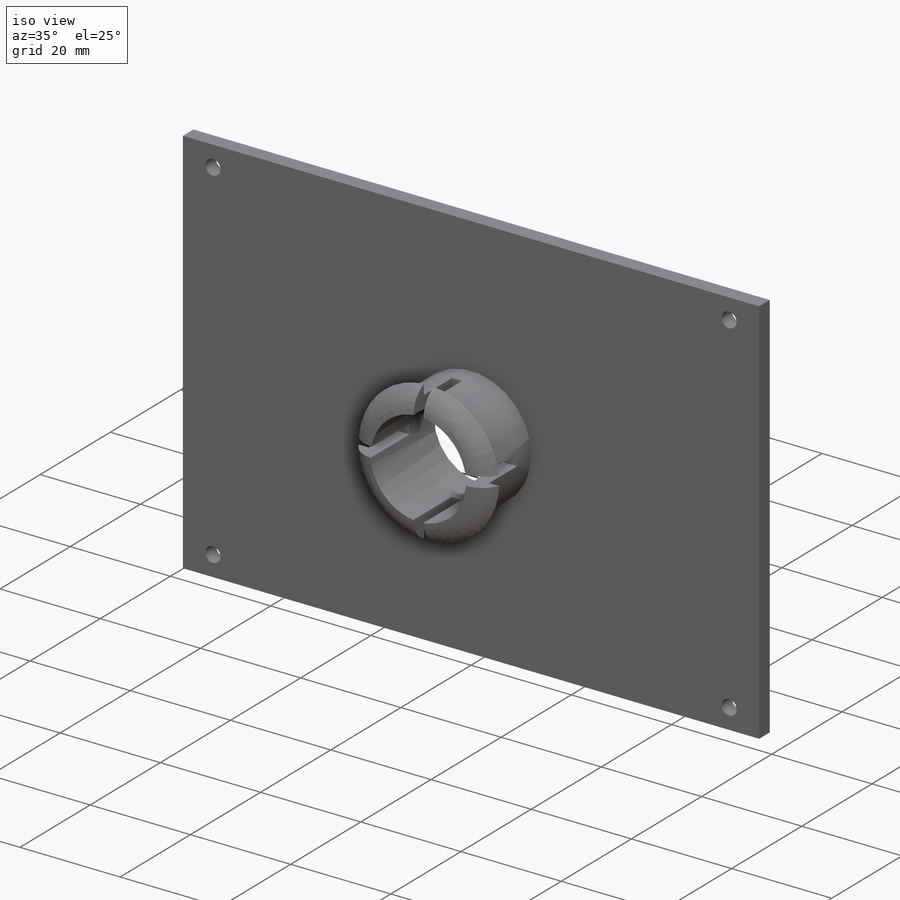
[diagram: iso view]
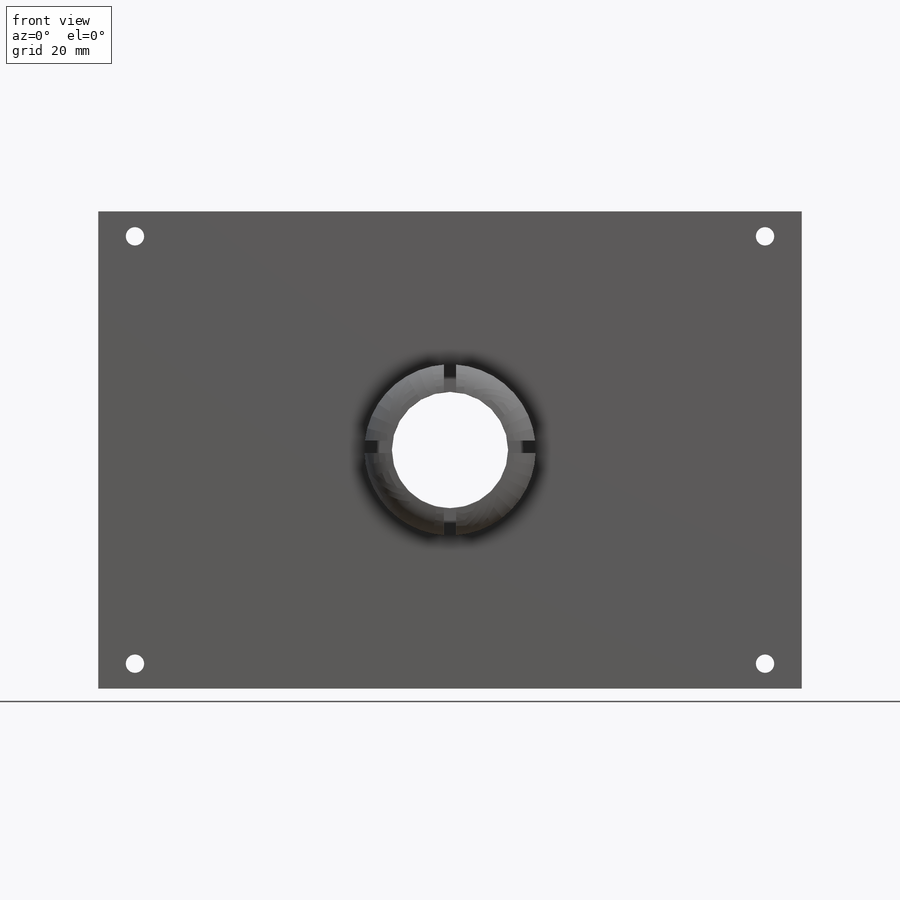
[diagram: front view]
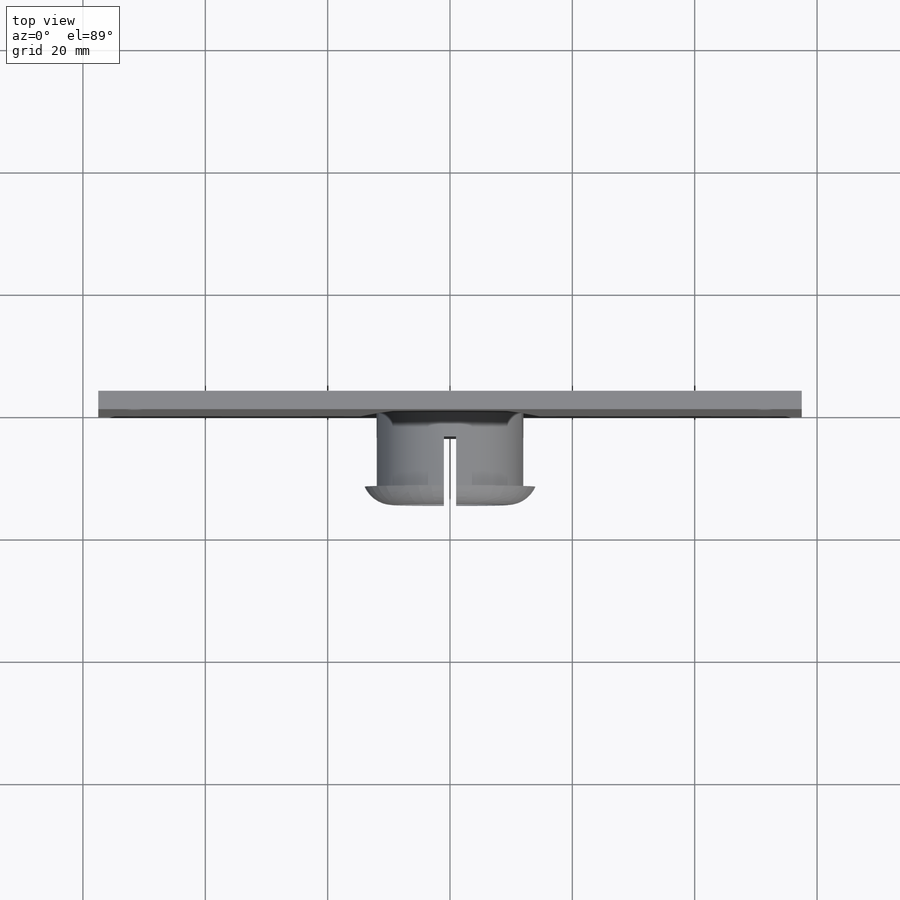
[diagram: top view]
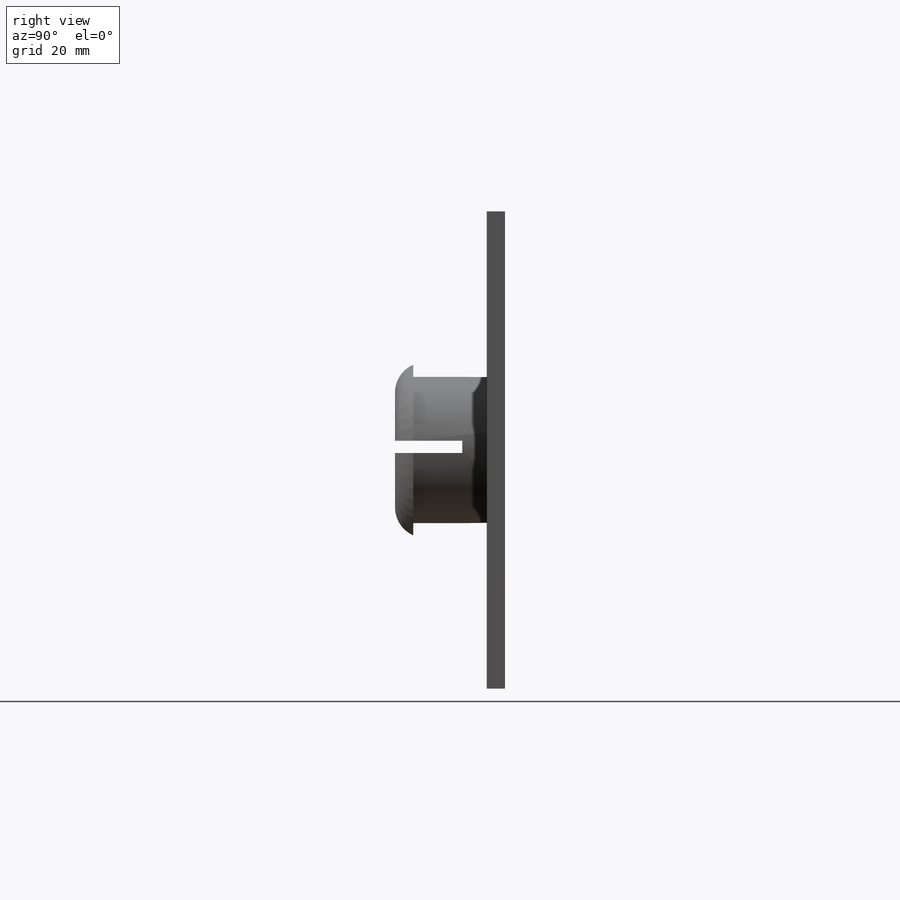
[diagram: right view]
SOLIDWORKS PART (.sldprt)
format: sldprt  version: not decoded by parser v0  size: 273,920 bytes
history: native  units: mm
features: sketch x6, fillet x4, plane x3, extrude x3, cut_extrude x3, material x1 (+10 scaffold rows collapsed)
feature tree (30):
  scaffold x10  (default folders/planes/origin — collapsed)
  material  "Material <não especificado>"
  plane  "Plano frontal"
  plane  "Plano superior"
  plane  "Plano direito"
  sketch  "Esboço1"  dims[D1=24.0mm D2=19.0mm]
  extrude  "Ressalto-extrusão1"  Depth=12mm
  sketch  "3DSketch1"  dims[D1=0.0mm]
  extrude  "Ressalto-extrusão2"  Depth=3mm
  sketch  "Esboço2"  dims[D1=2.0mm D2=1.0mm D3=4.0mm]
  cut_extrude  "Corte-extrusão1"  Depth=19mm
  sketch  "Esboço3"  dims[D1=4.0mm D2=2.0mm D3=1.0mm]
  cut_extrude  "Corte-extrusão2"  Depth=19mm
  fillet  "Filete1"  Radius=5mm
  fillet  "Filete2"  Radius=5mm
  fillet  "Filete3"  Radius=5mm
  fillet  "Filete4"  Radius=5mm
  sketch  "3DSketch3"  dims[D1=78.0mm D2=115.0mm D3=57.5mm D4=39.0mm]
  extrude  "Ressalto-extrusão3"  Depth=3mm
  sketch  "3DSketch4"  dims[c1.D1=3.0mm c1.D2=3.0mm c1.D3=3.0mm c1.D4=3.0mm c1.D5=6.0mm c1.D6=~4.069565mm c1.D7=~4.069565mm c2.D6=6.0mm c2.D7=6.0mm c2.D8=6.0mm]
  cut_extrude  "Corte-extrusão3"  Depth=63mm
decode coverage: 16 of 16 modeling features carry decoded parameters
note: ~ marks probable driven/reference dimensions
note: suppression state not decoded; provenance and decode notes live in map.json
